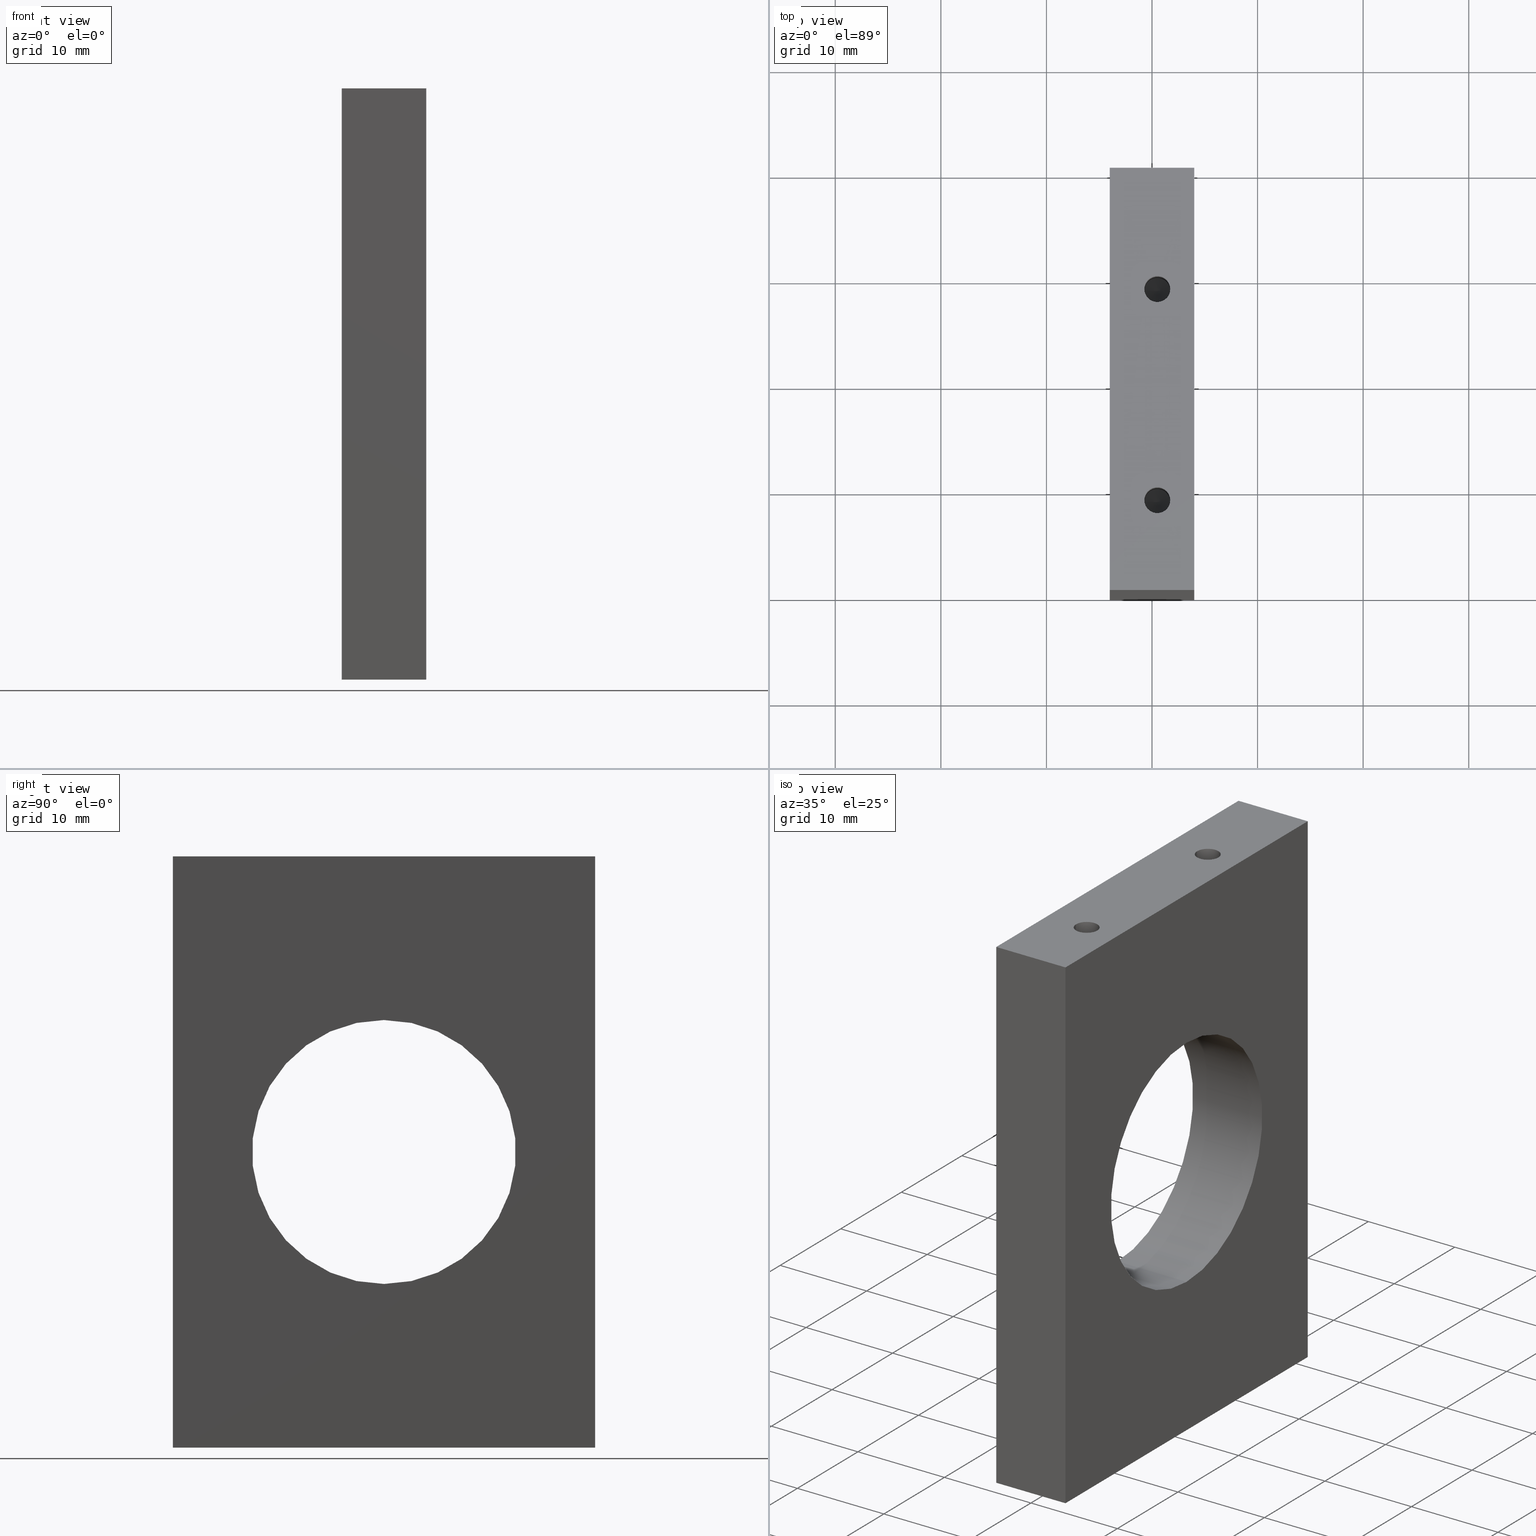
[diagram: canonical four-view strip — front | top / right | iso, engineering-drawing reading convention]
A machine part, canonical four-view strip (front | top / right | iso — engineering-drawing reading convention). The complete STEP part file that produces these views, byte-faithful:
ISO-10303-21;
HEADER;
/* Generated by software containing ST-Developer
 * from STEP Tools, Inc. (www.steptools.com) 
 */

FILE_DESCRIPTION(
/* description */ (''),
/* implementation_level */ '2;1');

FILE_NAME(
/* name */ 
'C:\\Users\\Charl\X\E8ne Brillard\\Desktop\\GHOSTINTHESHELL\\LM\\OpenS
PIM\\CAD\\Website\\CoolingWallsDetection.stp',
/* time_stamp */ '2021-08-30T14:05:52+02:00',
/* author */ ('Charlene Brillard'),
/* organization */ (''),
/* preprocessor_version */ 'ST-DEVELOPER v16.5',
/* originating_system */ 'Autodesk Inventor 2017',
/* authorisation */ '');

FILE_SCHEMA (('AUTOMOTIVE_DESIGN { 1 0 10303 214 3 1 1 }'));
ENDSEC;

DATA;
#10=MECHANICAL_DESIGN_GEOMETRIC_PRESENTATION_REPRESENTATION('',(#13),#371);
#11=SHAPE_REPRESENTATION_RELATIONSHIP('SRR','None',#380,#12);
#12=ADVANCED_BREP_SHAPE_REPRESENTATION('',(#14),#370);
#13=STYLED_ITEM('',(#389),#14);
#14=MANIFOLD_SOLID_BREP('Solid1',#215);
#15=FACE_BOUND('',#63,.T.);
#16=FACE_BOUND('',#66,.T.);
#17=FACE_BOUND('',#69,.T.);
#18=FACE_BOUND('',#72,.T.);
#19=FACE_BOUND('',#74,.T.);
#20=FACE_BOUND('',#76,.T.);
#21=FACE_BOUND('',#78,.T.);
#22=FACE_BOUND('',#79,.T.);
#23=FACE_BOUND('',#81,.T.);
#24=FACE_BOUND('',#83,.T.);
#25=FACE_BOUND('',#84,.T.);
#26=CYLINDRICAL_SURFACE('',#226,1.2295);
#27=CYLINDRICAL_SURFACE('',#230,1.2295);
#28=CYLINDRICAL_SURFACE('',#234,1.2295);
#29=CYLINDRICAL_SURFACE('',#238,1.2295);
#30=CYLINDRICAL_SURFACE('',#240,12.5);
#31=CIRCLE('',#225,1.2295);
#32=CIRCLE('',#227,1.2295);
#33=CIRCLE('',#229,1.2295);
#34=CIRCLE('',#231,1.2295);
#35=CIRCLE('',#233,1.2295);
#36=CIRCLE('',#235,1.2295);
#37=CIRCLE('',#237,1.2295);
#38=CIRCLE('',#239,1.2295);
#39=CIRCLE('',#241,12.5);
#40=CIRCLE('',#242,12.5);
#41=CONICAL_SURFACE('',#224,0.61475,59.);
#42=CONICAL_SURFACE('',#228,0.61475,59.);
#43=CONICAL_SURFACE('',#232,0.61475,59.);
#44=CONICAL_SURFACE('',#236,0.61475,59.);
#45=FACE_OUTER_BOUND('',#60,.T.);
#46=FACE_OUTER_BOUND('',#61,.T.);
#47=FACE_OUTER_BOUND('',#62,.T.);
#48=FACE_OUTER_BOUND('',#64,.T.);
#49=FACE_OUTER_BOUND('',#65,.T.);
#50=FACE_OUTER_BOUND('',#67,.T.);
#51=FACE_OUTER_BOUND('',#68,.T.);
#52=FACE_OUTER_BOUND('',#70,.T.);
#53=FACE_OUTER_BOUND('',#71,.T.);
#54=FACE_OUTER_BOUND('',#73,.T.);
#55=FACE_OUTER_BOUND('',#75,.T.);
#56=FACE_OUTER_BOUND('',#77,.T.);
#57=FACE_OUTER_BOUND('',#80,.T.);
#58=FACE_OUTER_BOUND('',#82,.T.);
#59=FACE_OUTER_BOUND('',#85,.T.);
#60=EDGE_LOOP('',(#150,#151,#152,#153));
#61=EDGE_LOOP('',(#154));
#62=EDGE_LOOP('',(#155));
#63=EDGE_LOOP('',(#156));
#64=EDGE_LOOP('',(#157));
#65=EDGE_LOOP('',(#158));
#66=EDGE_LOOP('',(#159));
#67=EDGE_LOOP('',(#160));
#68=EDGE_LOOP('',(#161));
#69=EDGE_LOOP('',(#162));
#70=EDGE_LOOP('',(#163));
#71=EDGE_LOOP('',(#164));
#72=EDGE_LOOP('',(#165));
#73=EDGE_LOOP('',(#166));
#74=EDGE_LOOP('',(#167));
#75=EDGE_LOOP('',(#168,#169,#170,#171));
#76=EDGE_LOOP('',(#172));
#77=EDGE_LOOP('',(#173,#174,#175,#176));
#78=EDGE_LOOP('',(#177));
#79=EDGE_LOOP('',(#178));
#80=EDGE_LOOP('',(#179,#180,#181,#182));
#81=EDGE_LOOP('',(#183));
#82=EDGE_LOOP('',(#184,#185,#186,#187));
#83=EDGE_LOOP('',(#188));
#84=EDGE_LOOP('',(#189));
#85=EDGE_LOOP('',(#190,#191,#192,#193));
#86=LINE('',#316,#98);
#87=LINE('',#318,#99);
#88=LINE('',#320,#100);
#89=LINE('',#321,#101);
#90=LINE('',#354,#102);
#91=LINE('',#355,#103);
#92=LINE('',#356,#104);
#93=LINE('',#359,#105);
#94=LINE('',#360,#106);
#95=LINE('',#363,#107);
#96=LINE('',#364,#108);
#97=LINE('',#366,#109);
#98=VECTOR('',#252,10.);
#99=VECTOR('',#253,10.);
#100=VECTOR('',#254,10.);
#101=VECTOR('',#255,10.);
#102=VECTOR('',#296,10.);
#103=VECTOR('',#297,10.);
#104=VECTOR('',#298,10.);
#105=VECTOR('',#301,10.);
#106=VECTOR('',#302,10.);
#107=VECTOR('',#305,10.);
#108=VECTOR('',#306,10.);
#109=VECTOR('',#309,10.);
#110=VERTEX_POINT('',#314);
#111=VERTEX_POINT('',#315);
#112=VERTEX_POINT('',#317);
#113=VERTEX_POINT('',#319);
#114=VERTEX_POINT('',#323);
#115=VERTEX_POINT('',#326);
#116=VERTEX_POINT('',#329);
#117=VERTEX_POINT('',#332);
#118=VERTEX_POINT('',#335);
#119=VERTEX_POINT('',#338);
#120=VERTEX_POINT('',#341);
#121=VERTEX_POINT('',#344);
#122=VERTEX_POINT('',#347);
#123=VERTEX_POINT('',#349);
#124=VERTEX_POINT('',#352);
#125=VERTEX_POINT('',#353);
#126=VERTEX_POINT('',#358);
#127=VERTEX_POINT('',#362);
#128=EDGE_CURVE('',#110,#111,#86,.T.);
#129=EDGE_CURVE('',#111,#112,#87,.T.);
#130=EDGE_CURVE('',#112,#113,#88,.T.);
#131=EDGE_CURVE('',#113,#110,#89,.T.);
#132=EDGE_CURVE('',#114,#114,#31,.T.);
#133=EDGE_CURVE('',#115,#115,#32,.T.);
#134=EDGE_CURVE('',#116,#116,#33,.T.);
#135=EDGE_CURVE('',#117,#117,#34,.T.);
#136=EDGE_CURVE('',#118,#118,#35,.T.);
#137=EDGE_CURVE('',#119,#119,#36,.T.);
#138=EDGE_CURVE('',#120,#120,#37,.T.);
#139=EDGE_CURVE('',#121,#121,#38,.T.);
#140=EDGE_CURVE('',#122,#122,#39,.T.);
#141=EDGE_CURVE('',#123,#123,#40,.T.);
#142=EDGE_CURVE('',#124,#125,#90,.T.);
#143=EDGE_CURVE('',#125,#110,#91,.T.);
#144=EDGE_CURVE('',#124,#113,#92,.T.);
#145=EDGE_CURVE('',#126,#124,#93,.T.);
#146=EDGE_CURVE('',#126,#112,#94,.T.);
#147=EDGE_CURVE('',#127,#126,#95,.T.);
#148=EDGE_CURVE('',#127,#111,#96,.T.);
#149=EDGE_CURVE('',#125,#127,#97,.T.);
#150=ORIENTED_EDGE('',*,*,#128,.T.);
#151=ORIENTED_EDGE('',*,*,#129,.T.);
#152=ORIENTED_EDGE('',*,*,#130,.T.);
#153=ORIENTED_EDGE('',*,*,#131,.T.);
#154=ORIENTED_EDGE('',*,*,#132,.F.);
#155=ORIENTED_EDGE('',*,*,#133,.F.);
#156=ORIENTED_EDGE('',*,*,#132,.T.);
#157=ORIENTED_EDGE('',*,*,#134,.F.);
#158=ORIENTED_EDGE('',*,*,#135,.F.);
#159=ORIENTED_EDGE('',*,*,#134,.T.);
#160=ORIENTED_EDGE('',*,*,#136,.T.);
#161=ORIENTED_EDGE('',*,*,#137,.F.);
#162=ORIENTED_EDGE('',*,*,#136,.F.);
#163=ORIENTED_EDGE('',*,*,#138,.T.);
#164=ORIENTED_EDGE('',*,*,#139,.F.);
#165=ORIENTED_EDGE('',*,*,#138,.F.);
#166=ORIENTED_EDGE('',*,*,#140,.F.);
#167=ORIENTED_EDGE('',*,*,#141,.F.);
#168=ORIENTED_EDGE('',*,*,#142,.T.);
#169=ORIENTED_EDGE('',*,*,#143,.T.);
#170=ORIENTED_EDGE('',*,*,#131,.F.);
#171=ORIENTED_EDGE('',*,*,#144,.F.);
#172=ORIENTED_EDGE('',*,*,#140,.T.);
#173=ORIENTED_EDGE('',*,*,#145,.T.);
#174=ORIENTED_EDGE('',*,*,#144,.T.);
#175=ORIENTED_EDGE('',*,*,#130,.F.);
#176=ORIENTED_EDGE('',*,*,#146,.F.);
#177=ORIENTED_EDGE('',*,*,#137,.T.);
#178=ORIENTED_EDGE('',*,*,#139,.T.);
#179=ORIENTED_EDGE('',*,*,#147,.T.);
#180=ORIENTED_EDGE('',*,*,#146,.T.);
#181=ORIENTED_EDGE('',*,*,#129,.F.);
#182=ORIENTED_EDGE('',*,*,#148,.F.);
#183=ORIENTED_EDGE('',*,*,#141,.T.);
#184=ORIENTED_EDGE('',*,*,#149,.T.);
#185=ORIENTED_EDGE('',*,*,#148,.T.);
#186=ORIENTED_EDGE('',*,*,#128,.F.);
#187=ORIENTED_EDGE('',*,*,#143,.F.);
#188=ORIENTED_EDGE('',*,*,#133,.T.);
#189=ORIENTED_EDGE('',*,*,#135,.T.);
#190=ORIENTED_EDGE('',*,*,#149,.F.);
#191=ORIENTED_EDGE('',*,*,#142,.F.);
#192=ORIENTED_EDGE('',*,*,#145,.F.);
#193=ORIENTED_EDGE('',*,*,#147,.F.);
#194=PLANE('',#223);
#195=PLANE('',#243);
#196=PLANE('',#244);
#197=PLANE('',#245);
#198=PLANE('',#246);
#199=PLANE('',#247);
#200=ADVANCED_FACE('',(#45),#194,.T.);
#201=ADVANCED_FACE('',(#46),#41,.F.);
#202=ADVANCED_FACE('',(#47,#15),#26,.F.);
#203=ADVANCED_FACE('',(#48),#42,.F.);
#204=ADVANCED_FACE('',(#49,#16),#27,.F.);
#205=ADVANCED_FACE('',(#50),#43,.F.);
#206=ADVANCED_FACE('',(#51,#17),#28,.F.);
#207=ADVANCED_FACE('',(#52),#44,.F.);
#208=ADVANCED_FACE('',(#53,#18),#29,.F.);
#209=ADVANCED_FACE('',(#54,#19),#30,.F.);
#210=ADVANCED_FACE('',(#55,#20),#195,.T.);
#211=ADVANCED_FACE('',(#56,#21,#22),#196,.T.);
#212=ADVANCED_FACE('',(#57,#23),#197,.T.);
#213=ADVANCED_FACE('',(#58,#24,#25),#198,.T.);
#214=ADVANCED_FACE('',(#59),#199,.T.);
#215=CLOSED_SHELL('',(#200,#201,#202,#203,#204,#205,#206,#207,#208,#209,
#210,#211,#212,#213,#214));
#216=DATE_TIME_ROLE('creation_date');
#217=APPLIED_DATE_AND_TIME_ASSIGNMENT(#218,#216,(#382));
#218=DATE_AND_TIME(#219,#220);
#219=CALENDAR_DATE(2021,12,5);
#220=LOCAL_TIME(15,3,42.,#221);
#221=COORDINATED_UNIVERSAL_TIME_OFFSET(0,0,.BEHIND.);
#222=AXIS2_PLACEMENT_3D('placement',#312,#248,#249);
#223=AXIS2_PLACEMENT_3D('',#313,#250,#251);
#224=AXIS2_PLACEMENT_3D('',#322,#256,#257);
#225=AXIS2_PLACEMENT_3D('',#324,#258,#259);
#226=AXIS2_PLACEMENT_3D('',#325,#260,#261);
#227=AXIS2_PLACEMENT_3D('',#327,#262,#263);
#228=AXIS2_PLACEMENT_3D('',#328,#264,#265);
#229=AXIS2_PLACEMENT_3D('',#330,#266,#267);
#230=AXIS2_PLACEMENT_3D('',#331,#268,#269);
#231=AXIS2_PLACEMENT_3D('',#333,#270,#271);
#232=AXIS2_PLACEMENT_3D('',#334,#272,#273);
#233=AXIS2_PLACEMENT_3D('',#336,#274,#275);
#234=AXIS2_PLACEMENT_3D('',#337,#276,#277);
#235=AXIS2_PLACEMENT_3D('',#339,#278,#279);
#236=AXIS2_PLACEMENT_3D('',#340,#280,#281);
#237=AXIS2_PLACEMENT_3D('',#342,#282,#283);
#238=AXIS2_PLACEMENT_3D('',#343,#284,#285);
#239=AXIS2_PLACEMENT_3D('',#345,#286,#287);
#240=AXIS2_PLACEMENT_3D('',#346,#288,#289);
#241=AXIS2_PLACEMENT_3D('',#348,#290,#291);
#242=AXIS2_PLACEMENT_3D('',#350,#292,#293);
#243=AXIS2_PLACEMENT_3D('',#351,#294,#295);
#244=AXIS2_PLACEMENT_3D('',#357,#299,#300);
#245=AXIS2_PLACEMENT_3D('',#361,#303,#304);
#246=AXIS2_PLACEMENT_3D('',#365,#307,#308);
#247=AXIS2_PLACEMENT_3D('',#367,#310,#311);
#248=DIRECTION('axis',(0.,0.,1.));
#249=DIRECTION('refdir',(1.,0.,0.));
#250=DIRECTION('center_axis',(0.,1.,0.));
#251=DIRECTION('ref_axis',(0.,0.,1.));
#252=DIRECTION('',(1.,0.,0.));
#253=DIRECTION('',(-5.94762334620619E-17,0.,-1.));
#254=DIRECTION('',(-1.,0.,0.));
#255=DIRECTION('',(1.88341405963196E-16,0.,1.));
#256=DIRECTION('center_axis',(0.,0.,1.));
#257=DIRECTION('ref_axis',(-1.,0.,0.));
#258=DIRECTION('center_axis',(0.,0.,-1.));
#259=DIRECTION('ref_axis',(-1.,0.,0.));
#260=DIRECTION('center_axis',(0.,0.,-1.));
#261=DIRECTION('ref_axis',(-1.,0.,0.));
#262=DIRECTION('center_axis',(0.,0.,-1.));
#263=DIRECTION('ref_axis',(-1.,0.,0.));
#264=DIRECTION('center_axis',(0.,0.,1.));
#265=DIRECTION('ref_axis',(-1.,0.,0.));
#266=DIRECTION('center_axis',(0.,0.,-1.));
#267=DIRECTION('ref_axis',(-1.,0.,0.));
#268=DIRECTION('center_axis',(0.,0.,-1.));
#269=DIRECTION('ref_axis',(-1.,0.,0.));
#270=DIRECTION('center_axis',(0.,0.,-1.));
#271=DIRECTION('ref_axis',(-1.,0.,0.));
#272=DIRECTION('center_axis',(0.,0.,-1.));
#273=DIRECTION('ref_axis',(-1.,0.,0.));
#274=DIRECTION('center_axis',(0.,0.,-1.));
#275=DIRECTION('ref_axis',(-1.,0.,0.));
#276=DIRECTION('center_axis',(0.,0.,-1.));
#277=DIRECTION('ref_axis',(-1.,0.,0.));
#278=DIRECTION('center_axis',(0.,0.,1.));
#279=DIRECTION('ref_axis',(-1.,0.,0.));
#280=DIRECTION('center_axis',(0.,0.,-1.));
#281=DIRECTION('ref_axis',(-1.,0.,0.));
#282=DIRECTION('center_axis',(0.,0.,-1.));
#283=DIRECTION('ref_axis',(-1.,0.,0.));
#284=DIRECTION('center_axis',(0.,0.,-1.));
#285=DIRECTION('ref_axis',(-1.,0.,0.));
#286=DIRECTION('center_axis',(0.,0.,1.));
#287=DIRECTION('ref_axis',(-1.,0.,0.));
#288=DIRECTION('center_axis',(-1.,0.,0.));
#289=DIRECTION('ref_axis',(0.,0.,1.));
#290=DIRECTION('center_axis',(1.,0.,-1.88341405963196E-16));
#291=DIRECTION('ref_axis',(0.,0.,1.));
#292=DIRECTION('center_axis',(-1.,0.,5.94762334620619E-17));
#293=DIRECTION('ref_axis',(0.,0.,1.));
#294=DIRECTION('center_axis',(-1.,0.,1.88341405963196E-16));
#295=DIRECTION('ref_axis',(1.77635683940025E-16,0.,1.));
#296=DIRECTION('',(1.88341405963196E-16,0.,1.));
#297=DIRECTION('',(0.,1.,0.));
#298=DIRECTION('',(0.,1.,0.));
#299=DIRECTION('center_axis',(0.,0.,-1.));
#300=DIRECTION('ref_axis',(-1.,0.,0.));
#301=DIRECTION('',(-1.,0.,0.));
#302=DIRECTION('',(0.,1.,0.));
#303=DIRECTION('center_axis',(1.,0.,-5.94762334620619E-17));
#304=DIRECTION('ref_axis',(-8.88178419700125E-17,0.,-1.));
#305=DIRECTION('',(-5.94762334620619E-17,0.,-1.));
#306=DIRECTION('',(0.,1.,0.));
#307=DIRECTION('center_axis',(0.,0.,1.));
#308=DIRECTION('ref_axis',(1.,0.,0.));
#309=DIRECTION('',(1.,0.,0.));
#310=DIRECTION('center_axis',(0.,-1.,0.));
#311=DIRECTION('ref_axis',(0.,0.,-1.));
#312=CARTESIAN_POINT('',(0.,0.,0.));
#313=CARTESIAN_POINT('Origin',(0.,40.,-1.33226762955019E-14));
#314=CARTESIAN_POINT('',(-4.,40.,28.));
#315=CARTESIAN_POINT('',(4.,40.,28.));
#316=CARTESIAN_POINT('',(-4.,40.,28.));
#317=CARTESIAN_POINT('',(4.,40.,-28.));
#318=CARTESIAN_POINT('',(4.,40.,28.));
#319=CARTESIAN_POINT('',(-4.00000000000001,40.,-28.));
#320=CARTESIAN_POINT('',(4.,40.,-28.));
#321=CARTESIAN_POINT('',(-4.00000000000001,40.,-28.));
#322=CARTESIAN_POINT('Origin',(0.499999999999995,28.5,18.8306209344528));
#323=CARTESIAN_POINT('',(-0.729500000000005,28.5,19.2));
#324=CARTESIAN_POINT('Origin',(0.499999999999995,28.5,19.2));
#325=CARTESIAN_POINT('Origin',(0.499999999999995,28.5,23.6));
#326=CARTESIAN_POINT('',(-0.729500000000005,28.5,28.));
#327=CARTESIAN_POINT('Origin',(0.499999999999995,28.5,28.));
#328=CARTESIAN_POINT('Origin',(0.499999999999993,8.5,18.8306209344528));
#329=CARTESIAN_POINT('',(-0.729500000000007,8.5,19.2));
#330=CARTESIAN_POINT('Origin',(0.499999999999993,8.5,19.2));
#331=CARTESIAN_POINT('Origin',(0.499999999999993,8.5,23.6));
#332=CARTESIAN_POINT('',(-0.729500000000007,8.5,28.));
#333=CARTESIAN_POINT('Origin',(0.499999999999993,8.5,28.));
#334=CARTESIAN_POINT('Origin',(0.499999999999995,28.5,-18.8306209344528));
#335=CARTESIAN_POINT('',(-0.729500000000005,28.5,-19.2));
#336=CARTESIAN_POINT('Origin',(0.499999999999995,28.5,-19.2));
#337=CARTESIAN_POINT('Origin',(0.499999999999995,28.5,-23.6));
#338=CARTESIAN_POINT('',(-0.729500000000005,28.5,-28.));
#339=CARTESIAN_POINT('Origin',(0.499999999999995,28.5,-28.));
#340=CARTESIAN_POINT('Origin',(0.499999999999993,8.5,-18.8306209344528));
#341=CARTESIAN_POINT('',(-0.729500000000007,8.5,-19.2));
#342=CARTESIAN_POINT('Origin',(0.499999999999993,8.5,-19.2));
#343=CARTESIAN_POINT('Origin',(0.499999999999993,8.5,-23.6));
#344=CARTESIAN_POINT('',(-0.729500000000007,8.5,-28.));
#345=CARTESIAN_POINT('Origin',(0.499999999999993,8.5,-28.));
#346=CARTESIAN_POINT('Origin',(4.,20.,-1.33226762955019E-14));
#347=CARTESIAN_POINT('',(-4.00000000000001,20.,-12.5));
#348=CARTESIAN_POINT('Origin',(-4.00000000000001,20.,-1.33226762955019E-14));
#349=CARTESIAN_POINT('',(4.,20.,-12.5));
#350=CARTESIAN_POINT('Origin',(4.,20.,-1.33226762955019E-14));
#351=CARTESIAN_POINT('Origin',(-4.00000000000001,0.,-28.));
#352=CARTESIAN_POINT('',(-4.00000000000001,0.,-28.));
#353=CARTESIAN_POINT('',(-4.,0.,28.));
#354=CARTESIAN_POINT('',(-4.00000000000001,0.,-28.));
#355=CARTESIAN_POINT('',(-4.,0.,28.));
#356=CARTESIAN_POINT('',(-4.00000000000001,0.,-28.));
#357=CARTESIAN_POINT('Origin',(4.,0.,-28.));
#358=CARTESIAN_POINT('',(4.,0.,-28.));
#359=CARTESIAN_POINT('',(4.,0.,-28.));
#360=CARTESIAN_POINT('',(4.,0.,-28.));
#361=CARTESIAN_POINT('Origin',(4.,0.,28.));
#362=CARTESIAN_POINT('',(4.,0.,28.));
#363=CARTESIAN_POINT('',(4.,0.,28.));
#364=CARTESIAN_POINT('',(4.,0.,28.));
#365=CARTESIAN_POINT('Origin',(-4.,0.,28.));
#366=CARTESIAN_POINT('',(-4.,0.,28.));
#367=CARTESIAN_POINT('Origin',(-2.60208521396521E-16,0.,-1.46757606067638E-14));
#368=UNCERTAINTY_MEASURE_WITH_UNIT(LENGTH_MEASURE(0.01),#372,
'DISTANCE_ACCURACY_VALUE',
'Maximum model space distance between geometric entities at asserted c
onnectivities');
#369=UNCERTAINTY_MEASURE_WITH_UNIT(LENGTH_MEASURE(1.E-6),#372,
'DISTANCE_ACCURACY_VALUE',
'Maximum model space distance between geometric entities at asserted c
onnectivities');
#370=(
GEOMETRIC_REPRESENTATION_CONTEXT(3)
GLOBAL_UNCERTAINTY_ASSIGNED_CONTEXT((#368))
GLOBAL_UNIT_ASSIGNED_CONTEXT((#372,#375,#373))
REPRESENTATION_CONTEXT('','3D')
);
#371=(
GEOMETRIC_REPRESENTATION_CONTEXT(3)
GLOBAL_UNCERTAINTY_ASSIGNED_CONTEXT((#369))
GLOBAL_UNIT_ASSIGNED_CONTEXT((#372,#375,#373))
REPRESENTATION_CONTEXT('','3D')
);
#372=(
LENGTH_UNIT()
NAMED_UNIT(*)
SI_UNIT(.MILLI.,.METRE.)
);
#373=(
NAMED_UNIT(*)
SI_UNIT($,.STERADIAN.)
SOLID_ANGLE_UNIT()
);
#374=DIMENSIONAL_EXPONENTS(0.,0.,0.,0.,0.,0.,0.);
#375=(
CONVERSION_BASED_UNIT('degree',#377)
NAMED_UNIT(#374)
PLANE_ANGLE_UNIT()
);
#376=(
NAMED_UNIT(*)
PLANE_ANGLE_UNIT()
SI_UNIT($,.RADIAN.)
);
#377=PLANE_ANGLE_MEASURE_WITH_UNIT(PLANE_ANGLE_MEASURE(0.01745329252),#376);
#378=SHAPE_DEFINITION_REPRESENTATION(#379,#380);
#379=PRODUCT_DEFINITION_SHAPE('',$,#382);
#380=SHAPE_REPRESENTATION('',(#222),#370);
#381=PRODUCT_DEFINITION_CONTEXT('part definition',#386,'design');
#382=PRODUCT_DEFINITION('CoolingWalls','CoolingWalls',#383,#381);
#383=PRODUCT_DEFINITION_FORMATION('',$,#388);
#384=PRODUCT_RELATED_PRODUCT_CATEGORY('CoolingWalls','CoolingWalls',(#388));
#385=APPLICATION_PROTOCOL_DEFINITION('international standard',
'automotive_design',2009,#386);
#386=APPLICATION_CONTEXT(
'Core Data for Automotive Mechanical Design Process');
#387=PRODUCT_CONTEXT('part definition',#386,'mechanical');
#388=PRODUCT('CoolingWalls','CoolingWalls',$,(#387));
#389=PRESENTATION_STYLE_ASSIGNMENT((#390));
#390=SURFACE_STYLE_USAGE(.BOTH.,#391);
#391=SURFACE_SIDE_STYLE('',(#392));
#392=SURFACE_STYLE_FILL_AREA(#393);
#393=FILL_AREA_STYLE('',(#394));
#394=FILL_AREA_STYLE_COLOUR('',#395);
#395=COLOUR_RGB('',0.996078431372549,0.996078431372549,1.);
ENDSEC;
END-ISO-10303-21;
